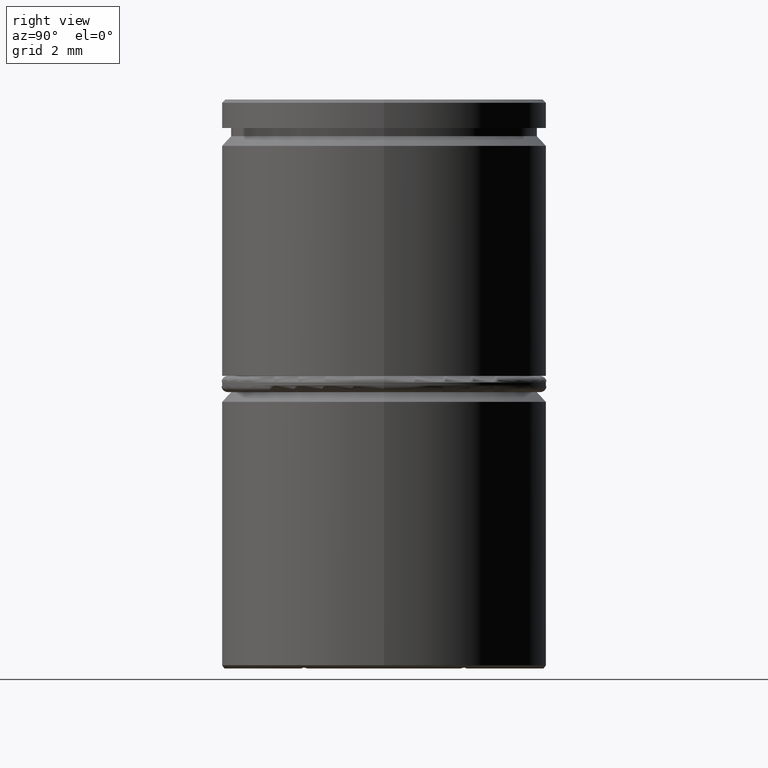
[diagram: clean part render]
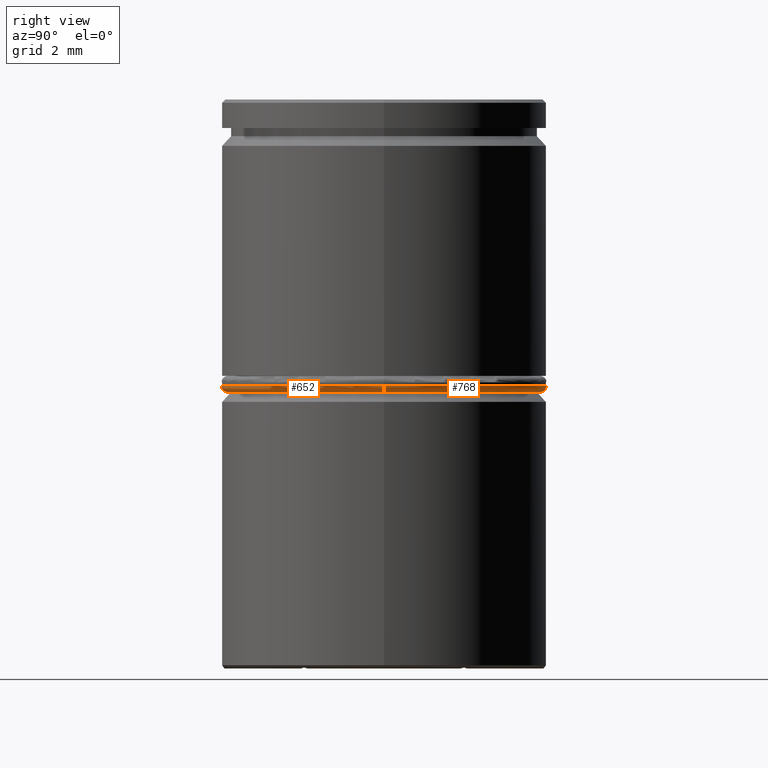
[diagram: same view with one multi-face feature highlighted, each face labeled with its STEP entity id]
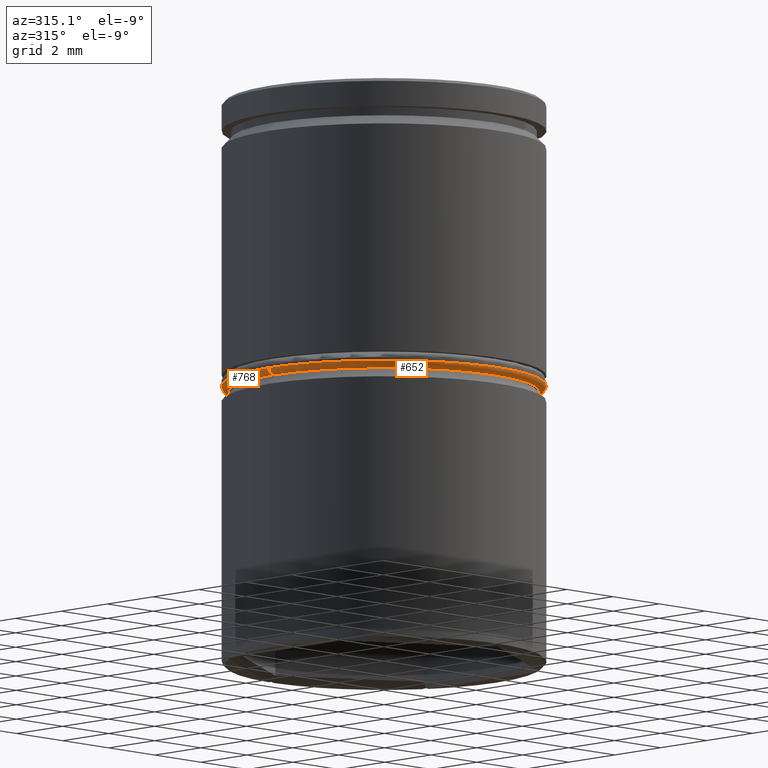
[diagram: same view with one multi-face feature highlighted, each face labeled with its STEP entity id]
A machine part, right view. The highlighted faces form ONE feature: a constant-radius fillet chain: 2 tangent blend faces with common blend radius 0.2 mm. The faces share edges in the B-rep.
A second angle (auxiliary view) of the same feature is appended — it is thin or edge-on in the first view.
Their STEP definitions:
[1] entity #652 (Torus):
#15 = CIRCLE ( 'NONE', #724, 4.800000000000000711 ) ;
#111 = CARTESIAN_POINT ( 'NONE',  ( 5.000000000000000000, 0.000000000000000000, -8.800000000000000711 ) ) ;
#136 = EDGE_CURVE ( 'NONE', #976, #959, #1199, .T. ) ;
#232 = DIRECTION ( 'NONE',  ( 0.000000000000000000, 0.000000000000000000, 1.000000000000000000 ) ) ;
#270 = DIRECTION ( 'NONE',  ( 1.000000000000000000, 0.000000000000000000, 0.000000000000000000 ) ) ;
#300 = CARTESIAN_POINT ( 'NONE',  ( 4.800000000000000711, 0.000000000000000000, -8.800000000000000711 ) ) ;
#318 = ORIENTED_EDGE ( 'NONE', *, *, #730, .F. ) ;
#346 = DIRECTION ( 'NONE',  ( -1.000000000000000000, 1.224646799147353454E-16, 0.000000000000000000 ) ) ;
#355 = CARTESIAN_POINT ( 'NONE',  ( 0.000000000000000000, 0.000000000000000000, -8.800000000000000711 ) ) ;
#381 = CARTESIAN_POINT ( 'NONE',  ( 0.000000000000000000, 0.000000000000000000, -9.000000000000001776 ) ) ;
#434 = FACE_OUTER_BOUND ( 'NONE', #881, .T. ) ;
#458 = CARTESIAN_POINT ( 'NONE',  ( 4.800000000000000711, 0.000000000000000000, -9.000000000000001776 ) ) ;
#487 = CIRCLE ( 'NONE', #1040, 5.000000000000000000 ) ;
#490 = DIRECTION ( 'NONE',  ( -0.000000000000000000, -0.000000000000000000, -1.000000000000000000 ) ) ;
#502 = CARTESIAN_POINT ( 'NONE',  ( -5.000000000000000000, 6.123233995736766282E-16, -8.800000000000000711 ) ) ;
#539 = CARTESIAN_POINT ( 'NONE',  ( 0.000000000000000000, 0.000000000000000000, -8.800000000000000711 ) ) ;
#559 = DIRECTION ( 'NONE',  ( 1.224646799147353207E-16, 1.000000000000000000, -0.000000000000000000 ) ) ;
#652 = ADVANCED_FACE ( 'NONE', ( #434 ), #1337, .T. ) ;
#655 = ORIENTED_EDGE ( 'NONE', *, *, #906, .T. ) ;
#664 = VERTEX_POINT ( 'NONE', #111 ) ;
#724 = AXIS2_PLACEMENT_3D ( 'NONE', #381, #490, #1105 ) ;
#730 = EDGE_CURVE ( 'NONE', #1192, #976, #15, .T. ) ;
#738 = DIRECTION ( 'NONE',  ( 1.000000000000000000, 0.000000000000000000, 0.000000000000000000 ) ) ;
#838 = DIRECTION ( 'NONE',  ( 0.000000000000000000, -1.000000000000000000, 0.000000000000000000 ) ) ;
#881 = EDGE_LOOP ( 'NONE', ( #1135, #318, #655, #1317 ) ) ;
#906 = EDGE_CURVE ( 'NONE', #1192, #664, #970, .T. ) ;
#936 = CARTESIAN_POINT ( 'NONE',  ( -4.800000000000000711, 6.000769315822031726E-16, -9.000000000000001776 ) ) ;
#959 = VERTEX_POINT ( 'NONE', #502 ) ;
#970 = CIRCLE ( 'NONE', #1110, 0.2000000000000005107 ) ;
#976 = VERTEX_POINT ( 'NONE', #936 ) ;
#990 = AXIS2_PLACEMENT_3D ( 'NONE', #539, #232, #738 ) ;
#996 = DIRECTION ( 'NONE',  ( 0.000000000000000000, 0.000000000000000000, 1.000000000000000000 ) ) ;
#1040 = AXIS2_PLACEMENT_3D ( 'NONE', #355, #996, #270 ) ;
#1104 = AXIS2_PLACEMENT_3D ( 'NONE', #1304, #559, #346 ) ;
#1105 = DIRECTION ( 'NONE',  ( 1.000000000000000000, 0.000000000000000000, 0.000000000000000000 ) ) ;
#1110 = AXIS2_PLACEMENT_3D ( 'NONE', #300, #838, #1156 ) ;
#1135 = ORIENTED_EDGE ( 'NONE', *, *, #136, .F. ) ;
#1156 = DIRECTION ( 'NONE',  ( 0.000000000000000000, 0.000000000000000000, -1.000000000000000000 ) ) ;
#1166 = EDGE_CURVE ( 'NONE', #959, #664, #487, .T. ) ;
#1192 = VERTEX_POINT ( 'NONE', #458 ) ;
#1199 = CIRCLE ( 'NONE', #1104, 0.1999999999999996503 ) ;
#1304 = CARTESIAN_POINT ( 'NONE',  ( -4.800000000000000711, 5.878304635907295197E-16, -8.800000000000000711 ) ) ;
#1317 = ORIENTED_EDGE ( 'NONE', *, *, #1166, .F. ) ;
#1337 = TOROIDAL_SURFACE ( 'NONE', #990, 4.800000000000000711, 0.2000000000000000111 ) ;
[2] entity #768 (Torus):
#9 = EDGE_LOOP ( 'NONE', ( #545, #608, #504, #911 ) ) ;
#54 = CARTESIAN_POINT ( 'NONE',  ( 0.000000000000000000, 0.000000000000000000, -8.800000000000000711 ) ) ;
#88 = DIRECTION ( 'NONE',  ( 1.000000000000000000, 0.000000000000000000, 0.000000000000000000 ) ) ;
#111 = CARTESIAN_POINT ( 'NONE',  ( 5.000000000000000000, 0.000000000000000000, -8.800000000000000711 ) ) ;
#136 = EDGE_CURVE ( 'NONE', #976, #959, #1199, .T. ) ;
#145 = CARTESIAN_POINT ( 'NONE',  ( 0.000000000000000000, 0.000000000000000000, -8.800000000000000711 ) ) ;
#174 = FACE_OUTER_BOUND ( 'NONE', #9, .T. ) ;
#271 = DIRECTION ( 'NONE',  ( 0.000000000000000000, 0.000000000000000000, 1.000000000000000000 ) ) ;
#300 = CARTESIAN_POINT ( 'NONE',  ( 4.800000000000000711, 0.000000000000000000, -8.800000000000000711 ) ) ;
#308 = AXIS2_PLACEMENT_3D ( 'NONE', #54, #271, #998 ) ;
#346 = DIRECTION ( 'NONE',  ( -1.000000000000000000, 1.224646799147353454E-16, 0.000000000000000000 ) ) ;
#351 = CIRCLE ( 'NONE', #308, 5.000000000000000000 ) ;
#458 = CARTESIAN_POINT ( 'NONE',  ( 4.800000000000000711, 0.000000000000000000, -9.000000000000001776 ) ) ;
#502 = CARTESIAN_POINT ( 'NONE',  ( -5.000000000000000000, 6.123233995736766282E-16, -8.800000000000000711 ) ) ;
#504 = ORIENTED_EDGE ( 'NONE', *, *, #780, .F. ) ;
#545 = ORIENTED_EDGE ( 'NONE', *, *, #877, .F. ) ;
#559 = DIRECTION ( 'NONE',  ( 1.224646799147353207E-16, 1.000000000000000000, -0.000000000000000000 ) ) ;
#597 = AXIS2_PLACEMENT_3D ( 'NONE', #832, #725, #88 ) ;
#608 = ORIENTED_EDGE ( 'NONE', *, *, #136, .T. ) ;
#660 = TOROIDAL_SURFACE ( 'NONE', #1132, 4.800000000000000711, 0.2000000000000000111 ) ;
#664 = VERTEX_POINT ( 'NONE', #111 ) ;
#670 = DIRECTION ( 'NONE',  ( 1.000000000000000000, 0.000000000000000000, 0.000000000000000000 ) ) ;
#725 = DIRECTION ( 'NONE',  ( -0.000000000000000000, -0.000000000000000000, -1.000000000000000000 ) ) ;
#768 = ADVANCED_FACE ( 'NONE', ( #174 ), #660, .T. ) ;
#780 = EDGE_CURVE ( 'NONE', #664, #959, #351, .T. ) ;
#805 = DIRECTION ( 'NONE',  ( 0.000000000000000000, 0.000000000000000000, 1.000000000000000000 ) ) ;
#832 = CARTESIAN_POINT ( 'NONE',  ( 0.000000000000000000, 0.000000000000000000, -9.000000000000001776 ) ) ;
#838 = DIRECTION ( 'NONE',  ( 0.000000000000000000, -1.000000000000000000, 0.000000000000000000 ) ) ;
#877 = EDGE_CURVE ( 'NONE', #976, #1192, #1020, .T. ) ;
#906 = EDGE_CURVE ( 'NONE', #1192, #664, #970, .T. ) ;
#911 = ORIENTED_EDGE ( 'NONE', *, *, #906, .F. ) ;
#936 = CARTESIAN_POINT ( 'NONE',  ( -4.800000000000000711, 6.000769315822031726E-16, -9.000000000000001776 ) ) ;
#959 = VERTEX_POINT ( 'NONE', #502 ) ;
#970 = CIRCLE ( 'NONE', #1110, 0.2000000000000005107 ) ;
#976 = VERTEX_POINT ( 'NONE', #936 ) ;
#998 = DIRECTION ( 'NONE',  ( 1.000000000000000000, 0.000000000000000000, 0.000000000000000000 ) ) ;
#1020 = CIRCLE ( 'NONE', #597, 4.800000000000000711 ) ;
#1104 = AXIS2_PLACEMENT_3D ( 'NONE', #1304, #559, #346 ) ;
#1110 = AXIS2_PLACEMENT_3D ( 'NONE', #300, #838, #1156 ) ;
#1132 = AXIS2_PLACEMENT_3D ( 'NONE', #145, #805, #670 ) ;
#1156 = DIRECTION ( 'NONE',  ( 0.000000000000000000, 0.000000000000000000, -1.000000000000000000 ) ) ;
#1192 = VERTEX_POINT ( 'NONE', #458 ) ;
#1199 = CIRCLE ( 'NONE', #1104, 0.1999999999999996503 ) ;
#1304 = CARTESIAN_POINT ( 'NONE',  ( -4.800000000000000711, 5.878304635907295197E-16, -8.800000000000000711 ) ) ;